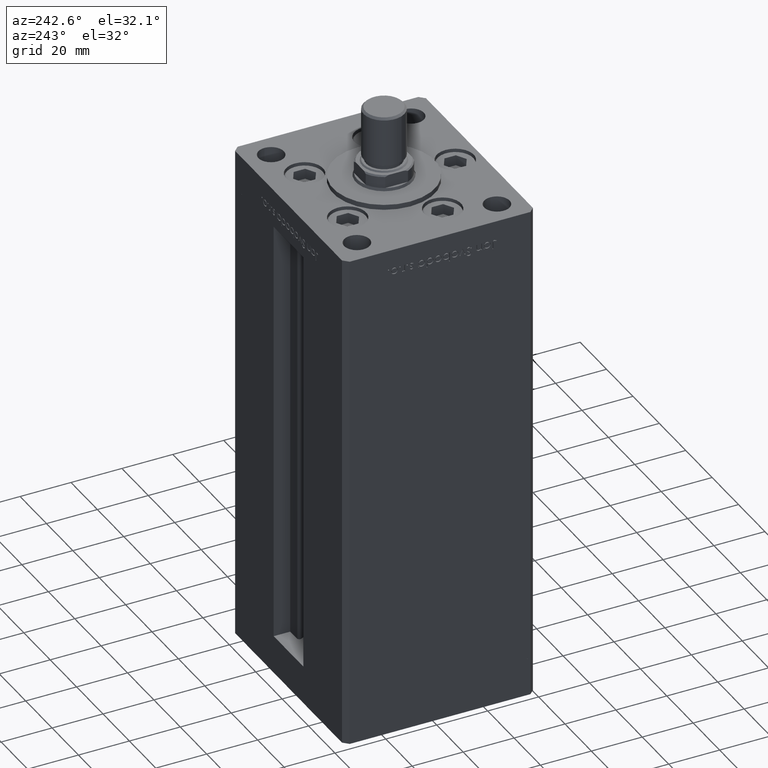
[diagram: clean part render]
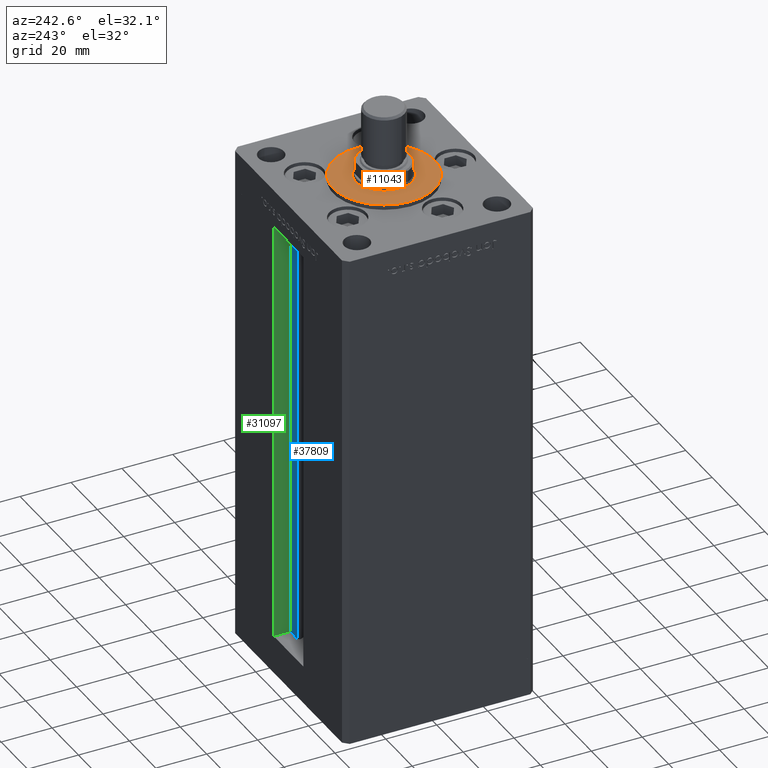
[diagram: same view with three faces highlighted in distinct colors, each labeled with its STEP entity id]
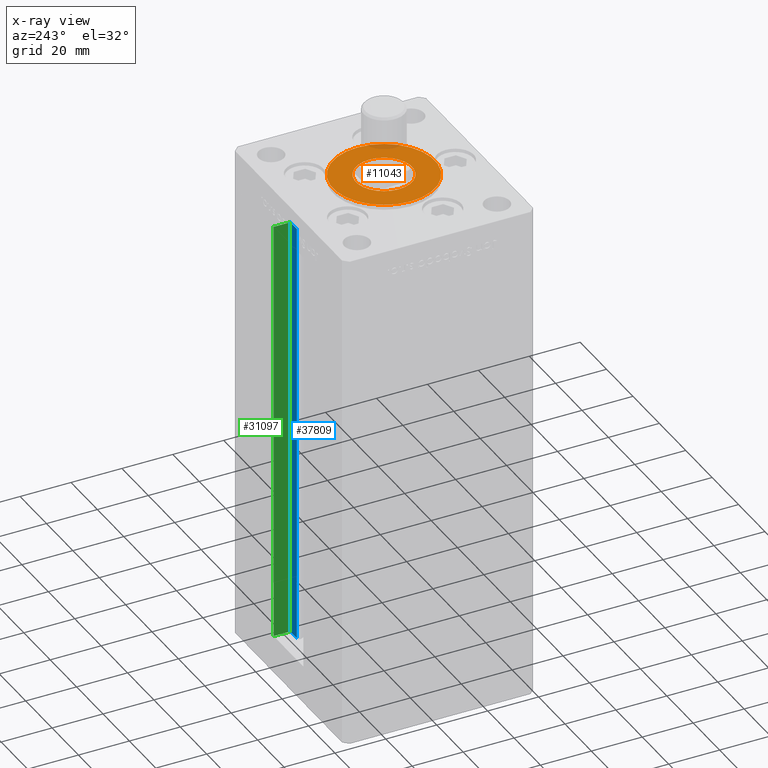
[diagram: x-ray of the same camera — body ghosted, the three highlighted faces saturated]
A machine part, auxiliary view with three faces highlighted in distinct colors.
The next image is the same camera in x-ray (body ghosted, the three faces saturated) — at least one of them is partly hidden behind the body in this view.
Their STEP definitions:

[orange] entity #11043 — the highlighted planar face has unit normal (0, 0, 1).
#147 = DIRECTION ( 'NONE',  ( 0.000000000000000000, 0.000000000000000000, 1.000000000000000000 ) ) ;
#1511 = DIRECTION ( 'NONE',  ( 0.000000000000000000, 0.000000000000000000, 1.000000000000000000 ) ) ;
#2446 = ORIENTED_EDGE ( 'NONE', *, *, #5302, .F. ) ;
#2607 = EDGE_CURVE ( 'NONE', #15521, #29088, #27854, .T. ) ;
#5023 = AXIS2_PLACEMENT_3D ( 'NONE', #34393, #42343, #18232 ) ;
#5302 = EDGE_CURVE ( 'NONE', #50213, #49563, #36360, .T. ) ;
#6830 = DIRECTION ( 'NONE',  ( 1.000000000000000000, 0.000000000000000000, 0.000000000000000000 ) ) ;
#11043 = ADVANCED_FACE ( 'NONE', ( #21659, #37827 ), #41542, .T. ) ;
#11857 = EDGE_CURVE ( 'NONE', #49563, #50213, #50012, .T. ) ;
#12062 = EDGE_LOOP ( 'NONE', ( #51119, #42693 ) ) ;
#12872 = DIRECTION ( 'NONE',  ( 1.000000000000000000, 0.000000000000000000, 0.000000000000000000 ) ) ;
#13534 = AXIS2_PLACEMENT_3D ( 'NONE', #49184, #147, #12872 ) ;
#14782 = DIRECTION ( 'NONE',  ( 0.000000000000000000, 0.000000000000000000, 1.000000000000000000 ) ) ;
#15521 = VERTEX_POINT ( 'NONE', #43427 ) ;
#18232 = DIRECTION ( 'NONE',  ( 1.000000000000000000, 0.000000000000000000, 0.000000000000000000 ) ) ;
#20606 = CARTESIAN_POINT ( 'NONE',  ( -11.00000000000000000, -5.591782424845139381E-15, 2.000000000000000000 ) ) ;
#21659 = FACE_BOUND ( 'NONE', #26247, .T. ) ;
#21841 = CIRCLE ( 'NONE', #48875, 20.00000000000000000 ) ;
#22899 = AXIS2_PLACEMENT_3D ( 'NONE', #29358, #1511, #34106 ) ;
#26247 = EDGE_LOOP ( 'NONE', ( #49234, #2446 ) ) ;
#27133 = AXIS2_PLACEMENT_3D ( 'NONE', #48434, #41012, #40745 ) ;
#27854 = CIRCLE ( 'NONE', #5023, 20.00000000000000000 ) ;
#28639 = CARTESIAN_POINT ( 'NONE',  ( 11.00000000000000000, -6.938893903907228378E-15, 2.000000000000000000 ) ) ;
#29088 = VERTEX_POINT ( 'NONE', #47628 ) ;
#29358 = CARTESIAN_POINT ( 'NONE',  ( 0.000000000000000000, -6.938893903907228378E-15, 2.000000000000000000 ) ) ;
#34106 = DIRECTION ( 'NONE',  ( 1.000000000000000000, 0.000000000000000000, -0.000000000000000000 ) ) ;
#34148 = CARTESIAN_POINT ( 'NONE',  ( 0.000000000000000000, -6.938893903907228378E-15, 2.000000000000000000 ) ) ;
#34393 = CARTESIAN_POINT ( 'NONE',  ( 0.000000000000000000, -6.938893903907228378E-15, 2.000000000000000000 ) ) ;
#36360 = CIRCLE ( 'NONE', #13534, 11.00000000000000000 ) ;
#37827 = FACE_OUTER_BOUND ( 'NONE', #12062, .T. ) ;
#40745 = DIRECTION ( 'NONE',  ( 1.000000000000000000, 0.000000000000000000, 0.000000000000000000 ) ) ;
#40787 = EDGE_CURVE ( 'NONE', #29088, #15521, #21841, .T. ) ;
#41012 = DIRECTION ( 'NONE',  ( 0.000000000000000000, 0.000000000000000000, 1.000000000000000000 ) ) ;
#41542 = PLANE ( 'NONE',  #22899 ) ;
#42343 = DIRECTION ( 'NONE',  ( 0.000000000000000000, 0.000000000000000000, 1.000000000000000000 ) ) ;
#42693 = ORIENTED_EDGE ( 'NONE', *, *, #2607, .T. ) ;
#43427 = CARTESIAN_POINT ( 'NONE',  ( 20.00000000000000000, -4.489600305612522259E-15, 2.000000000000000000 ) ) ;
#47628 = CARTESIAN_POINT ( 'NONE',  ( -20.00000000000000000, -6.938893903907228378E-15, 2.000000000000000000 ) ) ;
#48434 = CARTESIAN_POINT ( 'NONE',  ( 0.000000000000000000, -6.938893903907228378E-15, 2.000000000000000000 ) ) ;
#48875 = AXIS2_PLACEMENT_3D ( 'NONE', #34148, #14782, #6830 ) ;
#49184 = CARTESIAN_POINT ( 'NONE',  ( 0.000000000000000000, -6.938893903907228378E-15, 2.000000000000000000 ) ) ;
#49234 = ORIENTED_EDGE ( 'NONE', *, *, #11857, .F. ) ;
#49563 = VERTEX_POINT ( 'NONE', #28639 ) ;
#50012 = CIRCLE ( 'NONE', #27133, 11.00000000000000000 ) ;
#50213 = VERTEX_POINT ( 'NONE', #20606 ) ;
#51119 = ORIENTED_EDGE ( 'NONE', *, *, #40787, .T. ) ;

[blue] entity #37809 — the highlighted planar face has unit normal (0, -1, 0).
#275 = ORIENTED_EDGE ( 'NONE', *, *, #9249, .F. ) ;
#1741 = PLANE ( 'NONE',  #10700 ) ;
#6173 = VERTEX_POINT ( 'NONE', #36536 ) ;
#7292 = DIRECTION ( 'NONE',  ( -0.000000000000000000, -0.000000000000000000, 1.000000000000000000 ) ) ;
#8314 = CARTESIAN_POINT ( 'NONE',  ( 11.25000000000000000, 30.99999999999999289, 0.000000000000000000 ) ) ;
#9249 = EDGE_CURVE ( 'NONE', #6173, #36008, #51554, .T. ) ;
#10700 = AXIS2_PLACEMENT_3D ( 'NONE', #29597, #25617, #34080 ) ;
#11978 = CARTESIAN_POINT ( 'NONE',  ( 0.000000000000000000, 30.99999999999999289, 168.5000000000000000 ) ) ;
#13416 = FACE_OUTER_BOUND ( 'NONE', #45518, .T. ) ;
#14790 = CARTESIAN_POINT ( 'NONE',  ( 11.25000000000000000, 30.99999999999999289, 168.5000000000000000 ) ) ;
#14893 = CARTESIAN_POINT ( 'NONE',  ( 6.183333333333999704, 30.99999999999999289, 0.000000000000000000 ) ) ;
#15960 = DIRECTION ( 'NONE',  ( -1.000000000000000000, 0.000000000000000000, 0.000000000000000000 ) ) ;
#21468 = CARTESIAN_POINT ( 'NONE',  ( 6.183333333333999704, 30.99999999999999289, 168.5000000000000000 ) ) ;
#24430 = LINE ( 'NONE', #11978, #26211 ) ;
#24437 = ORIENTED_EDGE ( 'NONE', *, *, #39324, .F. ) ;
#25617 = DIRECTION ( 'NONE',  ( 0.000000000000000000, -1.000000000000000000, 0.000000000000000000 ) ) ;
#26211 = VECTOR ( 'NONE', #15960, 1000.000000000000000 ) ;
#28949 = CARTESIAN_POINT ( 'NONE',  ( 6.183333333333999704, 30.99999999999999289, 0.000000000000000000 ) ) ;
#29597 = CARTESIAN_POINT ( 'NONE',  ( 6.183333333333999704, 30.99999999999999289, 0.000000000000000000 ) ) ;
#29830 = ORIENTED_EDGE ( 'NONE', *, *, #47054, .F. ) ;
#29870 = EDGE_CURVE ( 'NONE', #43323, #49910, #45364, .T. ) ;
#34080 = DIRECTION ( 'NONE',  ( 0.000000000000000000, -0.000000000000000000, -1.000000000000000000 ) ) ;
#35044 = LINE ( 'NONE', #14893, #35298 ) ;
#35298 = VECTOR ( 'NONE', #47483, 1000.000000000000000 ) ;
#36008 = VERTEX_POINT ( 'NONE', #14790 ) ;
#36536 = CARTESIAN_POINT ( 'NONE',  ( 11.25000000000000000, 30.99999999999999289, 0.000000000000000000 ) ) ;
#37669 = VECTOR ( 'NONE', #40584, 1000.000000000000000 ) ;
#37809 = ADVANCED_FACE ( 'NONE', ( #13416 ), #1741, .F. ) ;
#39324 = EDGE_CURVE ( 'NONE', #43323, #6173, #35044, .T. ) ;
#40584 = DIRECTION ( 'NONE',  ( -0.000000000000000000, -0.000000000000000000, 1.000000000000000000 ) ) ;
#42466 = ORIENTED_EDGE ( 'NONE', *, *, #29870, .T. ) ;
#43323 = VERTEX_POINT ( 'NONE', #45105 ) ;
#45105 = CARTESIAN_POINT ( 'NONE',  ( 6.183333333333999704, 30.99999999999999289, 0.000000000000000000 ) ) ;
#45364 = LINE ( 'NONE', #28949, #37669 ) ;
#45518 = EDGE_LOOP ( 'NONE', ( #275, #24437, #42466, #29830 ) ) ;
#47054 = EDGE_CURVE ( 'NONE', #36008, #49910, #24430, .T. ) ;
#47483 = DIRECTION ( 'NONE',  ( 1.000000000000000000, 0.000000000000000000, 0.000000000000000000 ) ) ;
#49910 = VERTEX_POINT ( 'NONE', #21468 ) ;
#51554 = LINE ( 'NONE', #8314, #51617 ) ;
#51617 = VECTOR ( 'NONE', #7292, 1000.000000000000000 ) ;

[green] entity #31097 — the highlighted planar face has unit normal (1, 0, 0).
#844 = LINE ( 'NONE', #4817, #43934 ) ;
#3957 = VECTOR ( 'NONE', #43821, 1000.000000000000000 ) ;
#4817 = CARTESIAN_POINT ( 'NONE',  ( 11.25000000000000000, 37.50000000000000000, 0.000000000000000000 ) ) ;
#6173 = VERTEX_POINT ( 'NONE', #36536 ) ;
#7292 = DIRECTION ( 'NONE',  ( -0.000000000000000000, -0.000000000000000000, 1.000000000000000000 ) ) ;
#8314 = CARTESIAN_POINT ( 'NONE',  ( 11.25000000000000000, 30.99999999999999289, 0.000000000000000000 ) ) ;
#9249 = EDGE_CURVE ( 'NONE', #6173, #36008, #51554, .T. ) ;
#11682 = DIRECTION ( 'NONE',  ( 0.000000000000000000, 1.000000000000000000, 0.000000000000000000 ) ) ;
#12436 = CARTESIAN_POINT ( 'NONE',  ( 11.25000000000000000, 30.99999999999999289, 0.000000000000000000 ) ) ;
#14790 = CARTESIAN_POINT ( 'NONE',  ( 11.25000000000000000, 30.99999999999999289, 168.5000000000000000 ) ) ;
#16003 = ORIENTED_EDGE ( 'NONE', *, *, #36407, .F. ) ;
#20906 = ORIENTED_EDGE ( 'NONE', *, *, #46569, .F. ) ;
#20987 = DIRECTION ( 'NONE',  ( -0.000000000000000000, -0.000000000000000000, 1.000000000000000000 ) ) ;
#27670 = LINE ( 'NONE', #31909, #3957 ) ;
#28135 = VERTEX_POINT ( 'NONE', #46230 ) ;
#28611 = DIRECTION ( 'NONE',  ( 1.000000000000000000, -0.000000000000000000, 0.000000000000000000 ) ) ;
#30358 = CARTESIAN_POINT ( 'NONE',  ( 11.24999999999999289, 37.50000000000000000, 168.5000000000000000 ) ) ;
#31097 = ADVANCED_FACE ( 'NONE', ( #48749 ), #49300, .F. ) ;
#31909 = CARTESIAN_POINT ( 'NONE',  ( 11.25000000000000000, 0.000000000000000000, 168.5000000000000000 ) ) ;
#32082 = EDGE_LOOP ( 'NONE', ( #20906, #16003, #38229, #35620 ) ) ;
#34499 = EDGE_CURVE ( 'NONE', #37862, #36008, #27670, .T. ) ;
#35548 = LINE ( 'NONE', #44011, #38595 ) ;
#35620 = ORIENTED_EDGE ( 'NONE', *, *, #34499, .F. ) ;
#36008 = VERTEX_POINT ( 'NONE', #14790 ) ;
#36407 = EDGE_CURVE ( 'NONE', #6173, #28135, #35548, .T. ) ;
#36536 = CARTESIAN_POINT ( 'NONE',  ( 11.25000000000000000, 30.99999999999999289, 0.000000000000000000 ) ) ;
#37862 = VERTEX_POINT ( 'NONE', #30358 ) ;
#38229 = ORIENTED_EDGE ( 'NONE', *, *, #9249, .T. ) ;
#38595 = VECTOR ( 'NONE', #11682, 1000.000000000000000 ) ;
#43821 = DIRECTION ( 'NONE',  ( -0.000000000000000000, -1.000000000000000000, 0.000000000000000000 ) ) ;
#43934 = VECTOR ( 'NONE', #20987, 1000.000000000000000 ) ;
#44011 = CARTESIAN_POINT ( 'NONE',  ( 11.25000000000000000, 30.99999999999999289, 0.000000000000000000 ) ) ;
#44770 = DIRECTION ( 'NONE',  ( 0.000000000000000000, 0.000000000000000000, -1.000000000000000000 ) ) ;
#46230 = CARTESIAN_POINT ( 'NONE',  ( 11.25000000000000000, 37.50000000000000000, 0.000000000000000000 ) ) ;
#46569 = EDGE_CURVE ( 'NONE', #28135, #37862, #844, .T. ) ;
#48749 = FACE_OUTER_BOUND ( 'NONE', #32082, .T. ) ;
#49300 = PLANE ( 'NONE',  #50405 ) ;
#50405 = AXIS2_PLACEMENT_3D ( 'NONE', #12436, #28611, #44770 ) ;
#51554 = LINE ( 'NONE', #8314, #51617 ) ;
#51617 = VECTOR ( 'NONE', #7292, 1000.000000000000000 ) ;